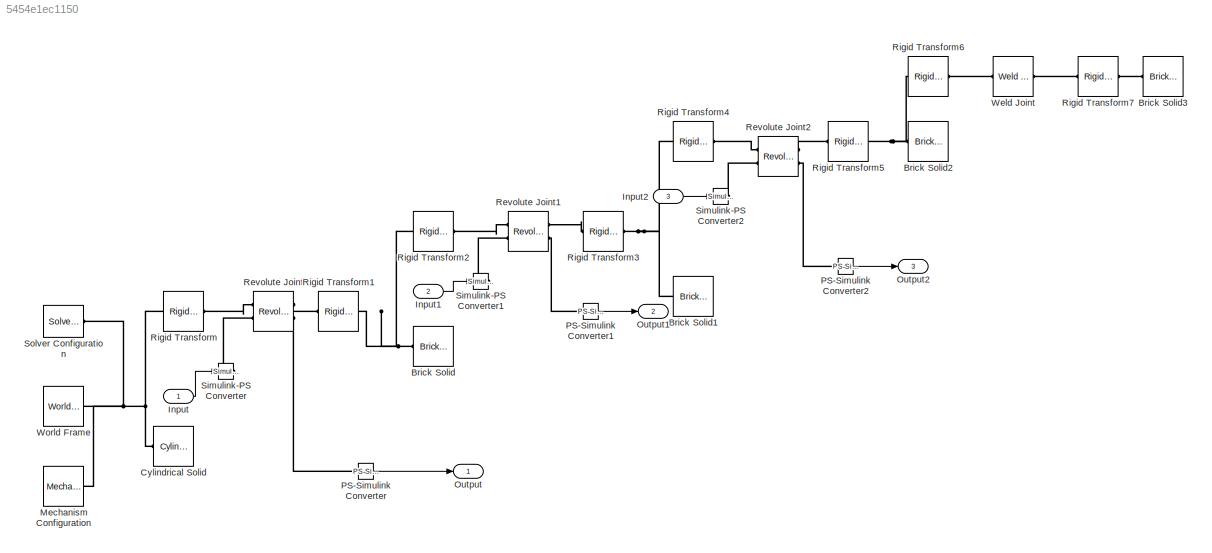
MODEL slx_5454e1ec1150
KIND model
CONFIG AbsTol = auto
CONFIG EnableMultiTasking = off
CONFIG FixedStep = auto
CONFIG MaxStep = auto
CONFIG MinStep = auto
CONFIG RelTol = 1e-3
CONFIG SampleTimeConstraint = Unconstrained
CONFIG SolverName = VariableStepAuto
CONFIG StartTime = 0.0
CONFIG StopTime = 10.0
BLOCK [Reference] Brick Solid  REF=sm_lib/Body Elements/Brick Solid
  Ports = [0, 0, 0, 0, 0, 0, 1]
  SourceBlock = sm_lib/Body Elements/Brick Solid
  SourceProductBaseCode = MS
  SourceType = Brick Solid
BLOCK [Reference] Brick Solid1  REF=sm_lib/Body Elements/Brick Solid
  Ports = [0, 0, 0, 0, 0, 0, 1]
  SourceBlock = sm_lib/Body Elements/Brick Solid
  SourceProductBaseCode = MS
  SourceType = Brick Solid
BLOCK [Reference] Brick Solid2  REF=sm_lib/Body Elements/Brick Solid
  Ports = [0, 0, 0, 0, 0, 0, 1]
  SourceBlock = sm_lib/Body Elements/Brick Solid
  SourceProductBaseCode = MS
  SourceType = Brick Solid
BLOCK [Reference] Brick Solid3  REF=sm_lib/Body Elements/Brick Solid
  Ports = [0, 0, 0, 0, 0, 0, 1]
  SourceBlock = sm_lib/Body Elements/Brick Solid
  SourceProductBaseCode = MS
  SourceType = Brick Solid
BLOCK [Reference] Cylindrical Solid  REF=sm_lib/Body Elements/Cylindrical Solid
  Ports = [0, 0, 0, 0, 0, 0, 1]
  SourceBlock = sm_lib/Body Elements/Cylindrical Solid
  SourceProductBaseCode = MS
  SourceType = Cylindrical Solid
BLOCK [Inport] Input
BLOCK [Inport] Input1
  Port = 2
BLOCK [Inport] Input2
  Port = 3
BLOCK [Reference] Mechanism Configuration  REF=sm_lib/Utilities/Mechanism
Configuration
  Ports = [0, 0, 0, 0, 0, 0, 1]
  SourceBlock = sm_lib/Utilities/Mechanism\nConfiguration
  SourceProductBaseCode = MS
  SourceType = Mechanism\nConfiguration
BLOCK [Outport] Output
BLOCK [Outport] Output1
  Port = 2
BLOCK [Outport] Output2
  Port = 3
BLOCK [Reference] PS-Simulink Converter  REF=nesl_utility/PS-Simulink
Converter
  Ports = [0, 1, 0, 0, 0, 1]
  SourceBlock = nesl_utility/PS-Simulink\nConverter
  SourceProductBaseCode = PW,SS
  SourceType = PS-Simulink\nConverter
BLOCK [Reference] PS-Simulink Converter1  REF=nesl_utility/PS-Simulink
Converter
  Ports = [0, 1, 0, 0, 0, 1]
  SourceBlock = nesl_utility/PS-Simulink\nConverter
  SourceProductBaseCode = PW,SS
  SourceType = PS-Simulink\nConverter
BLOCK [Reference] PS-Simulink Converter2  REF=nesl_utility/PS-Simulink
Converter
  Ports = [0, 1, 0, 0, 0, 1]
  SourceBlock = nesl_utility/PS-Simulink\nConverter
  SourceProductBaseCode = PW,SS
  SourceType = PS-Simulink\nConverter
BLOCK [Reference] Revolute Joint  REF=sm_lib/Joints/Revolute Joint
  Ports = [0, 0, 0, 0, 0, 2, 2]
  SourceBlock = sm_lib/Joints/Revolute Joint
  SourceProductBaseCode = MS
  SourceType = Revolute Joint
BLOCK [Reference] Revolute Joint1  REF=sm_lib/Joints/Revolute Joint
  Ports = [0, 0, 0, 0, 0, 2, 2]
  SourceBlock = sm_lib/Joints/Revolute Joint
  SourceProductBaseCode = MS
  SourceType = Revolute Joint
BLOCK [Reference] Revolute Joint2  REF=sm_lib/Joints/Revolute Joint
  Ports = [0, 0, 0, 0, 0, 2, 2]
  SourceBlock = sm_lib/Joints/Revolute Joint
  SourceProductBaseCode = MS
  SourceType = Revolute Joint
BLOCK [Reference] Rigid Transform  REF=sm_lib/Frames and
Transforms/Rigid
Transform
  Ports = [0, 0, 0, 0, 0, 1, 1]
  SourceBlock = sm_lib/Frames and\nTransforms/Rigid\nTransform
  SourceProductBaseCode = MS
  SourceType = Rigid\nTransform
BLOCK [Reference] Rigid Transform1  REF=sm_lib/Frames and
Transforms/Rigid
Transform
  Ports = [0, 0, 0, 0, 0, 1, 1]
  SourceBlock = sm_lib/Frames and\nTransforms/Rigid\nTransform
  SourceProductBaseCode = MS
  SourceType = Rigid\nTransform
BLOCK [Reference] Rigid Transform2  REF=sm_lib/Frames and
Transforms/Rigid
Transform
  Ports = [0, 0, 0, 0, 0, 1, 1]
  SourceBlock = sm_lib/Frames and\nTransforms/Rigid\nTransform
  SourceProductBaseCode = MS
  SourceType = Rigid\nTransform
BLOCK [Reference] Rigid Transform3  REF=sm_lib/Frames and
Transforms/Rigid
Transform
  Ports = [0, 0, 0, 0, 0, 1, 1]
  SourceBlock = sm_lib/Frames and\nTransforms/Rigid\nTransform
  SourceProductBaseCode = MS
  SourceType = Rigid\nTransform
BLOCK [Reference] Rigid Transform4  REF=sm_lib/Frames and
Transforms/Rigid
Transform
  Ports = [0, 0, 0, 0, 0, 1, 1]
  SourceBlock = sm_lib/Frames and\nTransforms/Rigid\nTransform
  SourceProductBaseCode = MS
  SourceType = Rigid\nTransform
BLOCK [Reference] Rigid Transform5  REF=sm_lib/Frames and
Transforms/Rigid
Transform
  Ports = [0, 0, 0, 0, 0, 1, 1]
  SourceBlock = sm_lib/Frames and\nTransforms/Rigid\nTransform
  SourceProductBaseCode = MS
  SourceType = Rigid\nTransform
BLOCK [Reference] Rigid Transform6  REF=sm_lib/Frames and
Transforms/Rigid
Transform
  Ports = [0, 0, 0, 0, 0, 1, 1]
  SourceBlock = sm_lib/Frames and\nTransforms/Rigid\nTransform
  SourceProductBaseCode = MS
  SourceType = Rigid\nTransform
BLOCK [Reference] Rigid Transform7  REF=sm_lib/Frames and
Transforms/Rigid
Transform
  Ports = [0, 0, 0, 0, 0, 1, 1]
  SourceBlock = sm_lib/Frames and\nTransforms/Rigid\nTransform
  SourceProductBaseCode = MS
  SourceType = Rigid\nTransform
BLOCK [Reference] Simulink-PS Converter  REF=nesl_utility/Simulink-PS
Converter
  Ports = [1, 0, 0, 0, 0, 0, 1]
  SourceBlock = nesl_utility/Simulink-PS\nConverter
  SourceProductBaseCode = PW,SS
  SourceType = Simulink-PS\nConverter
BLOCK [Reference] Simulink-PS Converter1  REF=nesl_utility/Simulink-PS
Converter
  Ports = [1, 0, 0, 0, 0, 0, 1]
  SourceBlock = nesl_utility/Simulink-PS\nConverter
  SourceProductBaseCode = PW,SS
  SourceType = Simulink-PS\nConverter
BLOCK [Reference] Simulink-PS Converter2  REF=nesl_utility/Simulink-PS
Converter
  Ports = [1, 0, 0, 0, 0, 0, 1]
  SourceBlock = nesl_utility/Simulink-PS\nConverter
  SourceProductBaseCode = PW,SS
  SourceType = Simulink-PS\nConverter
BLOCK [Reference] Solver Configuration  REF=nesl_utility/Solver
Configuration
  Ports = [0, 0, 0, 0, 0, 0, 1]
  SourceBlock = nesl_utility/Solver\nConfiguration
  SourceProductBaseCode = PW,SS
  SourceType = Solver\nConfiguration
BLOCK [Reference] Weld Joint  REF=sm_lib/Joints/Weld Joint
  Ports = [0, 0, 0, 0, 0, 1, 1]
  SourceBlock = sm_lib/Joints/Weld Joint
  SourceProductBaseCode = MS
  SourceType = Weld Joint
BLOCK [Reference] World Frame  REF=sm_lib/Frames and
Transforms/World Frame
  Ports = [0, 0, 0, 0, 0, 0, 1]
  SourceBlock = sm_lib/Frames and\nTransforms/World Frame
  SourceProductBaseCode = MS
  SourceType = World Frame
LINE Input1:1 -> Simulink-PS Converter1:1
LINE Input2:1 -> Simulink-PS Converter2:1
LINE Input:1 -> Simulink-PS Converter:1
LINE PS-Simulink Converter1:1 -> Output1:1
LINE PS-Simulink Converter2:1 -> Output2:1
LINE PS-Simulink Converter:1 -> Output:1
PNET net1: Brick Solid1:RConn1 -- Rigid Transform3:RConn1 -- Rigid Transform4:LConn1
PNET net2: Brick Solid2:RConn1 -- Rigid Transform5:RConn1 -- Rigid Transform6:LConn1
PLINE Brick Solid3:RConn1 -- Rigid Transform7:RConn1
PNET net3: Brick Solid:RConn1 -- Rigid Transform1:RConn1 -- Rigid Transform2:LConn1
PNET net4: Cylindrical Solid:RConn1 -- Mechanism Configuration:RConn1 -- Rigid Transform:LConn1 -- Solver Configuration:RConn1 -- World Frame:RConn1
PLINE PS-Simulink Converter1:LConn1 -- Revolute Joint1:RConn2
PLINE PS-Simulink Converter2:LConn1 -- Revolute Joint2:RConn2
PLINE PS-Simulink Converter:LConn1 -- Revolute Joint:RConn2
PLINE Revolute Joint1:LConn1 -- Rigid Transform2:RConn1
PLINE Revolute Joint1:LConn2 -- Simulink-PS Converter1:RConn1
PLINE Revolute Joint1:RConn1 -- Rigid Transform3:LConn1
PLINE Revolute Joint2:LConn1 -- Rigid Transform4:RConn1
PLINE Revolute Joint2:LConn2 -- Simulink-PS Converter2:RConn1
PLINE Revolute Joint2:RConn1 -- Rigid Transform5:LConn1
PLINE Revolute Joint:LConn1 -- Rigid Transform:RConn1
PLINE Revolute Joint:LConn2 -- Simulink-PS Converter:RConn1
PLINE Revolute Joint:RConn1 -- Rigid Transform1:LConn1
PLINE Rigid Transform6:RConn1 -- Weld Joint:LConn1
PLINE Rigid Transform7:LConn1 -- Weld Joint:RConn1
note: PNET lines group multi-terminal physical nets as a canonical sorted terminal list (undirected conserving connections); 2-terminal nets keep the pairwise PLINE form
